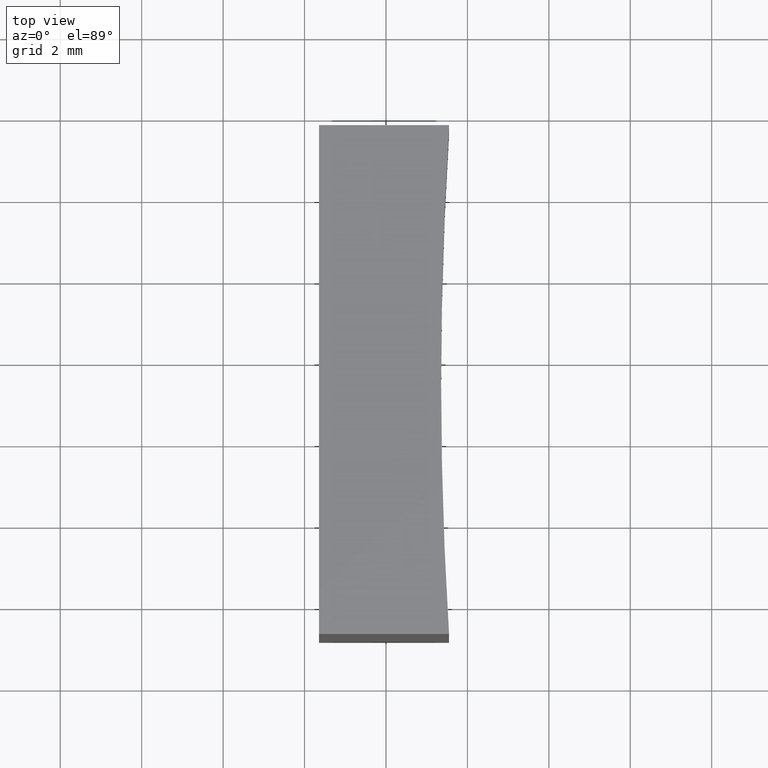
[diagram: clean part render]
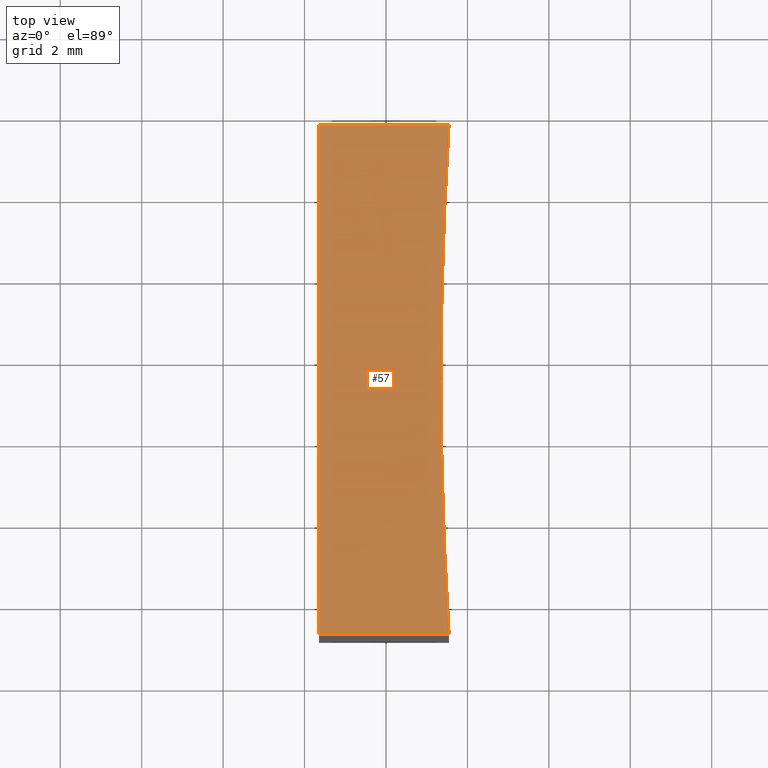
[diagram: same view with one face highlighted and labeled with its STEP entity id]
A machine part, top view. The second image highlights one B-rep face of the part: STEP entity #57.
In plain terms, the highlighted planar face has unit normal (0, 0, 1).
Its self-contained STEP definition (entity closure, byte-faithful):
#3 = CARTESIAN_POINT ( 'NONE',  ( 245.3535678156401300, 33.42896463388355200, 12.50000000000000000 ) ) ;
#6 = FACE_OUTER_BOUND ( 'NONE', #199, .T. ) ;
#19 = LINE ( 'NONE', #29, #71 ) ;
#23 = EDGE_CURVE ( 'NONE', #75, #99, #202, .T. ) ;
#27 = AXIS2_PLACEMENT_3D ( 'NONE', #3, #184, #100 ) ;
#29 = CARTESIAN_POINT ( 'NONE',  ( 142.3535678156410400, 27.17896463388353800, 12.50000000000000000 ) ) ;
#36 = EDGE_CURVE ( 'NONE', #99, #46, #117, .T. ) ;
#39 = ORIENTED_EDGE ( 'NONE', *, *, #23, .T. ) ;
#42 = DIRECTION ( 'NONE',  ( -0.0000000000000000000, -0.0000000000000000000, -1.000000000000000000 ) ) ;
#46 = VERTEX_POINT ( 'NONE', #61 ) ;
#56 = AXIS2_PLACEMENT_3D ( 'NONE', #203, #42, #223 ) ;
#57 = ADVANCED_FACE ( 'NONE', ( #6 ), #220, .T. ) ;
#61 = CARTESIAN_POINT ( 'NONE',  ( 145.5490714239444400, 39.67896463388353800, 12.50000000000000000 ) ) ;
#66 = CARTESIAN_POINT ( 'NONE',  ( 145.5490714239444400, 27.17896463388360200, 12.50000000000000000 ) ) ;
#67 = DIRECTION ( 'NONE',  ( 0.0000000000000000000, 0.0000000000000000000, 1.000000000000000000 ) ) ;
#71 = VECTOR ( 'NONE', #86, 1000.000000000000000 ) ;
#72 = AXIS2_PLACEMENT_3D ( 'NONE', #118, #67, #226 ) ;
#74 = LINE ( 'NONE', #192, #210 ) ;
#75 = VERTEX_POINT ( 'NONE', #66 ) ;
#84 = VERTEX_POINT ( 'NONE', #191 ) ;
#86 = DIRECTION ( 'NONE',  ( -0.0000000000000000000, -1.000000000000000000, -0.0000000000000000000 ) ) ;
#90 = CARTESIAN_POINT ( 'NONE',  ( 145.3535678156401300, 33.42896463388355200, 12.50000000000000000 ) ) ;
#99 = VERTEX_POINT ( 'NONE', #90 ) ;
#100 = DIRECTION ( 'NONE',  ( 1.000000000000000000, 0.0000000000000000000, 0.0000000000000000000 ) ) ;
#102 = CARTESIAN_POINT ( 'NONE',  ( 145.5490714239444400, 27.17896463388357000, 12.50000000000000000 ) ) ;
#104 = CARTESIAN_POINT ( 'NONE',  ( 142.3535678156410400, 39.67896463388353800, 12.50000000000000000 ) ) ;
#115 = ORIENTED_EDGE ( 'NONE', *, *, #36, .T. ) ;
#117 = CIRCLE ( 'NONE', #56, 100.0000000000000000 ) ;
#118 = CARTESIAN_POINT ( 'NONE',  ( 245.3535678156401300, 33.42896463388355200, 12.50000000000000000 ) ) ;
#123 = DIRECTION ( 'NONE',  ( -1.000000000000000000, -0.0000000000000000000, -0.0000000000000000000 ) ) ;
#128 = DIRECTION ( 'NONE',  ( 1.000000000000000000, 9.771549775893063200E-015, -0.0000000000000000000 ) ) ;
#132 = EDGE_CURVE ( 'NONE', #46, #218, #74, .T. ) ;
#137 = ORIENTED_EDGE ( 'NONE', *, *, #143, .T. ) ;
#143 = EDGE_CURVE ( 'NONE', #84, #75, #161, .T. ) ;
#146 = EDGE_CURVE ( 'NONE', #218, #84, #19, .T. ) ;
#150 = ORIENTED_EDGE ( 'NONE', *, *, #132, .T. ) ;
#154 = VECTOR ( 'NONE', #128, 1000.000000000000000 ) ;
#161 = LINE ( 'NONE', #102, #154 ) ;
#184 = DIRECTION ( 'NONE',  ( -0.0000000000000000000, -0.0000000000000000000, -1.000000000000000000 ) ) ;
#191 = CARTESIAN_POINT ( 'NONE',  ( 142.3535678156410400, 27.17896463388353800, 12.50000000000000000 ) ) ;
#192 = CARTESIAN_POINT ( 'NONE',  ( 142.3535678156410400, 39.67896463388353800, 12.50000000000000000 ) ) ;
#199 = EDGE_LOOP ( 'NONE', ( #236, #137, #39, #115, #150 ) ) ;
#202 = CIRCLE ( 'NONE', #27, 100.0000000000000000 ) ;
#203 = CARTESIAN_POINT ( 'NONE',  ( 245.3535678156401300, 33.42896463388355200, 12.50000000000000000 ) ) ;
#210 = VECTOR ( 'NONE', #123, 1000.000000000000000 ) ;
#218 = VERTEX_POINT ( 'NONE', #104 ) ;
#220 = PLANE ( 'NONE',  #72 ) ;
#223 = DIRECTION ( 'NONE',  ( 1.000000000000000000, 0.0000000000000000000, 0.0000000000000000000 ) ) ;
#226 = DIRECTION ( 'NONE',  ( 1.000000000000000000, 0.0000000000000000000, -0.0000000000000000000 ) ) ;
#236 = ORIENTED_EDGE ( 'NONE', *, *, #146, .T. ) ;